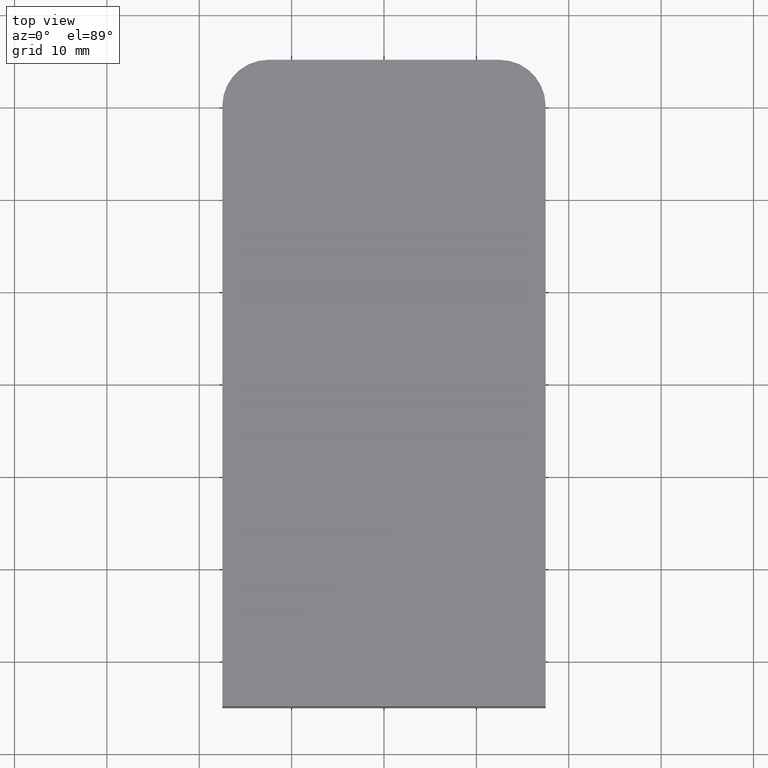
[diagram: clean part render]
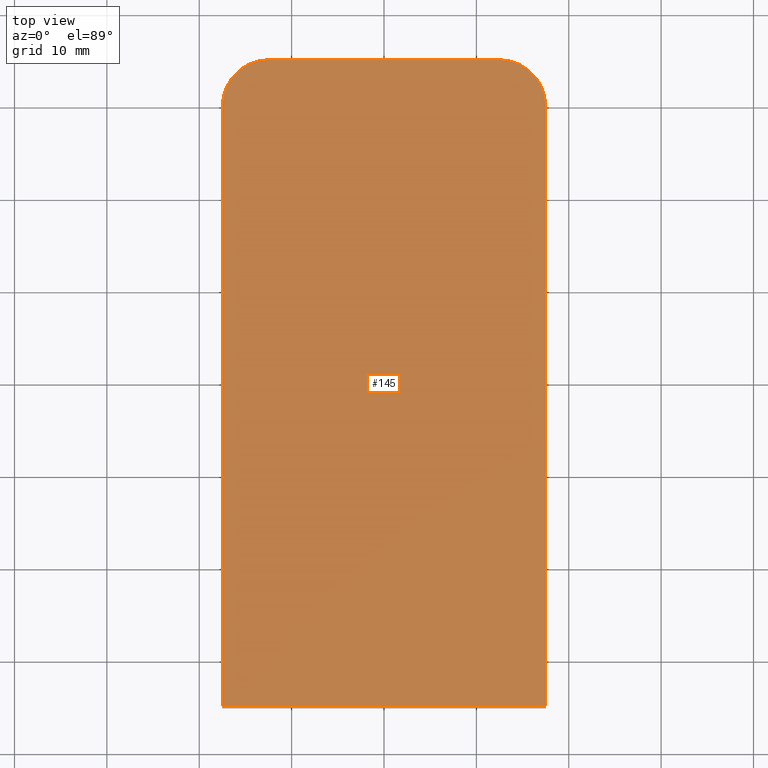
[diagram: same view with one face highlighted and labeled with its STEP entity id]
A machine part, top view. The second image highlights one B-rep face of the part: STEP entity #145.
In plain terms, the highlighted planar face has unit normal (0, 0, 1).
Its self-contained STEP definition (entity closure, byte-faithful):
#25=FACE_OUTER_BOUND('',#33,.T.);
#33=EDGE_LOOP('',(#126,#127,#128,#129,#130,#131));
#36=CIRCLE('',#171,5.);
#37=CIRCLE('',#174,5.);
#42=LINE('',#235,#56);
#46=LINE('',#244,#60);
#49=LINE('',#252,#63);
#51=LINE('',#255,#65);
#56=VECTOR('',#192,10.);
#60=VECTOR('',#202,10.);
#63=VECTOR('',#211,10.);
#65=VECTOR('',#215,10.);
#72=VERTEX_POINT('',#233);
#73=VERTEX_POINT('',#234);
#74=VERTEX_POINT('',#239);
#75=VERTEX_POINT('',#243);
#76=VERTEX_POINT('',#247);
#77=VERTEX_POINT('',#251);
#84=EDGE_CURVE('',#72,#73,#42,.T.);
#87=EDGE_CURVE('',#73,#74,#36,.T.);
#89=EDGE_CURVE('',#74,#75,#46,.T.);
#91=EDGE_CURVE('',#75,#76,#37,.T.);
#93=EDGE_CURVE('',#76,#77,#49,.T.);
#95=EDGE_CURVE('',#77,#72,#51,.T.);
#126=ORIENTED_EDGE('',*,*,#84,.F.);
#127=ORIENTED_EDGE('',*,*,#95,.F.);
#128=ORIENTED_EDGE('',*,*,#93,.F.);
#129=ORIENTED_EDGE('',*,*,#91,.F.);
#130=ORIENTED_EDGE('',*,*,#89,.F.);
#131=ORIENTED_EDGE('',*,*,#87,.F.);
#137=PLANE('',#177);
#145=ADVANCED_FACE('',(#25),#137,.T.);
#171=AXIS2_PLACEMENT_3D('',#240,#197,#198);
#174=AXIS2_PLACEMENT_3D('',#248,#206,#207);
#177=AXIS2_PLACEMENT_3D('',#256,#216,#217);
#192=DIRECTION('',(3.41607084500048E-17,1.,0.));
#197=DIRECTION('center_axis',(0.,0.,-1.));
#198=DIRECTION('ref_axis',(8.88178419700126E-16,1.,0.));
#202=DIRECTION('',(1.,1.77635683940025E-16,0.));
#206=DIRECTION('center_axis',(0.,0.,-1.));
#207=DIRECTION('ref_axis',(1.,0.,0.));
#211=DIRECTION('',(1.70803542250024E-16,-1.,0.));
#215=DIRECTION('',(-1.,0.,0.));
#216=DIRECTION('center_axis',(0.,0.,1.));
#217=DIRECTION('ref_axis',(1.,0.,0.));
#233=CARTESIAN_POINT('',(-17.5,-35.,6.));
#234=CARTESIAN_POINT('',(-17.5,30.,6.));
#235=CARTESIAN_POINT('',(-17.5,30.,6.));
#239=CARTESIAN_POINT('',(-12.5,35.,6.));
#240=CARTESIAN_POINT('Origin',(-12.5,30.,6.));
#243=CARTESIAN_POINT('',(12.5,35.,6.));
#244=CARTESIAN_POINT('',(12.5,35.,6.));
#247=CARTESIAN_POINT('',(17.5,30.,6.));
#248=CARTESIAN_POINT('Origin',(12.5,30.,6.));
#251=CARTESIAN_POINT('',(17.5,-35.,6.));
#252=CARTESIAN_POINT('',(17.5,-35.,6.));
#255=CARTESIAN_POINT('',(-17.5,-35.,6.));
#256=CARTESIAN_POINT('Origin',(0.,-0.75266928424039,6.));